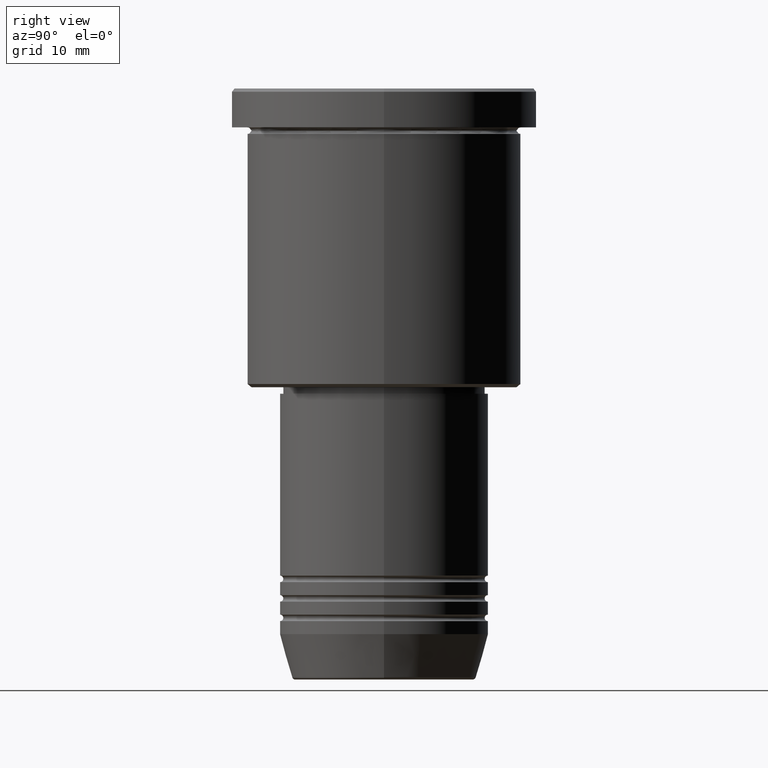
[diagram: clean part render]
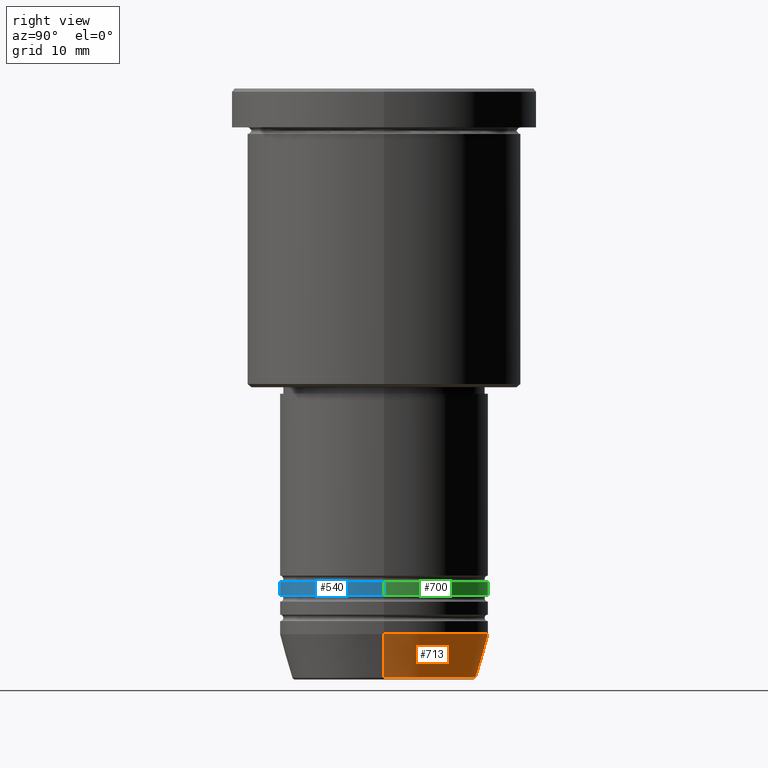
[diagram: same view with three faces highlighted in distinct colors, each labeled with its STEP entity id]
A machine part, right view with three faces highlighted in distinct colors.
Their STEP definitions:

[orange] entity #713 — the highlighted conical surface has half-angle 15 deg.
#4 = DIRECTION ( 'NONE',  ( -0.000000000000000000, -0.000000000000000000, 1.000000000000000000 ) ) ;
#18 = VECTOR ( 'NONE', #1032, 1000.000000000000000 ) ;
#33 = EDGE_CURVE ( 'NONE', #224, #97, #1095, .T. ) ;
#36 = CARTESIAN_POINT ( 'NONE',  ( -16.00000000000000000, 1.959434878635765131E-15, -83.99999999999998579 ) ) ;
#97 = VERTEX_POINT ( 'NONE', #255 ) ;
#105 = CARTESIAN_POINT ( 'NONE',  ( -16.00000000000000000, 1.959434878635765131E-15, -83.99999999999998579 ) ) ;
#152 = DIRECTION ( 'NONE',  ( 0.2588190451025213501, 0.000000000000000000, 0.9659258262890680902 ) ) ;
#198 = CIRCLE ( 'NONE', #1028, 14.22365507213718949 ) ;
#210 = DIRECTION ( 'NONE',  ( 1.000000000000000000, 0.000000000000000000, 0.000000000000000000 ) ) ;
#224 = VERTEX_POINT ( 'NONE', #1004 ) ;
#230 = EDGE_CURVE ( 'NONE', #224, #915, #198, .T. ) ;
#243 = ORIENTED_EDGE ( 'NONE', *, *, #33, .F. ) ;
#255 = CARTESIAN_POINT ( 'NONE',  ( 16.00000000000000000, 0.000000000000000000, -83.99999999999998579 ) ) ;
#318 = CARTESIAN_POINT ( 'NONE',  ( -14.22365507213718949, 1.850665122131323337E-15, -90.62940952255125637 ) ) ;
#336 = DIRECTION ( 'NONE',  ( 1.000000000000000000, 0.000000000000000000, 0.000000000000000000 ) ) ;
#338 = CARTESIAN_POINT ( 'NONE',  ( 0.000000000000000000, 0.000000000000000000, -90.62940952255125637 ) ) ;
#365 = ORIENTED_EDGE ( 'NONE', *, *, #707, .F. ) ;
#463 = DIRECTION ( 'NONE',  ( -0.000000000000000000, -0.000000000000000000, 1.000000000000000000 ) ) ;
#487 = CONICAL_SURFACE ( 'NONE', #1174, 16.00000000000000000, 0.2617993877991500740 ) ;
#564 = EDGE_LOOP ( 'NONE', ( #907, #726, #365, #243 ) ) ;
#617 = CARTESIAN_POINT ( 'NONE',  ( 16.00000000000000000, 0.000000000000000000, -83.99999999999998579 ) ) ;
#674 = LINE ( 'NONE', #36, #18 ) ;
#707 = EDGE_CURVE ( 'NONE', #97, #806, #1063, .T. ) ;
#710 = DIRECTION ( 'NONE',  ( 1.000000000000000000, 0.000000000000000000, 0.000000000000000000 ) ) ;
#713 = ADVANCED_FACE ( 'NONE', ( #1076 ), #487, .T. ) ;
#726 = ORIENTED_EDGE ( 'NONE', *, *, #892, .T. ) ;
#796 = CARTESIAN_POINT ( 'NONE',  ( 0.000000000000000000, 0.000000000000000000, -83.99999999999998579 ) ) ;
#806 = VERTEX_POINT ( 'NONE', #105 ) ;
#810 = VECTOR ( 'NONE', #152, 1000.000000000000000 ) ;
#892 = EDGE_CURVE ( 'NONE', #915, #806, #674, .T. ) ;
#907 = ORIENTED_EDGE ( 'NONE', *, *, #230, .T. ) ;
#915 = VERTEX_POINT ( 'NONE', #318 ) ;
#1004 = CARTESIAN_POINT ( 'NONE',  ( 14.22365507213718949, 0.000000000000000000, -90.62940952255125637 ) ) ;
#1028 = AXIS2_PLACEMENT_3D ( 'NONE', #338, #463, #210 ) ;
#1031 = AXIS2_PLACEMENT_3D ( 'NONE', #796, #4, #710 ) ;
#1032 = DIRECTION ( 'NONE',  ( -0.2588190451025213501, 3.169619151431772337E-17, 0.9659258262890680902 ) ) ;
#1063 = CIRCLE ( 'NONE', #1031, 16.00000000000000000 ) ;
#1070 = CARTESIAN_POINT ( 'NONE',  ( 0.000000000000000000, 0.000000000000000000, -83.99999999999998579 ) ) ;
#1076 = FACE_OUTER_BOUND ( 'NONE', #564, .T. ) ;
#1084 = DIRECTION ( 'NONE',  ( -0.000000000000000000, -0.000000000000000000, 1.000000000000000000 ) ) ;
#1095 = LINE ( 'NONE', #617, #810 ) ;
#1174 = AXIS2_PLACEMENT_3D ( 'NONE', #1070, #1084, #336 ) ;

[blue] entity #540 — the highlighted cylindrical surface (partial cylindrical patch) has radius 16 mm, axis along (-0, -0, 1).
#30 = CARTESIAN_POINT ( 'NONE',  ( -16.00000000000000000, 1.959434878635765131E-15, -75.99999999999997158 ) ) ;
#77 = ORIENTED_EDGE ( 'NONE', *, *, #98, .F. ) ;
#98 = EDGE_CURVE ( 'NONE', #833, #461, #835, .T. ) ;
#115 = VERTEX_POINT ( 'NONE', #1071 ) ;
#141 = CARTESIAN_POINT ( 'NONE',  ( 16.00000000000000000, 0.000000000000000000, 0.000000000000000000 ) ) ;
#145 = DIRECTION ( 'NONE',  ( -0.000000000000000000, -0.000000000000000000, 1.000000000000000000 ) ) ;
#227 = CYLINDRICAL_SURFACE ( 'NONE', #393, 16.00000000000000000 ) ;
#231 = FACE_OUTER_BOUND ( 'NONE', #690, .T. ) ;
#233 = DIRECTION ( 'NONE',  ( -0.000000000000000000, -0.000000000000000000, 1.000000000000000000 ) ) ;
#245 = DIRECTION ( 'NONE',  ( -0.000000000000000000, -0.000000000000000000, 1.000000000000000000 ) ) ;
#257 = AXIS2_PLACEMENT_3D ( 'NONE', #821, #245, #884 ) ;
#282 = CARTESIAN_POINT ( 'NONE',  ( 16.00000000000000000, 0.000000000000000000, -75.99999999999997158 ) ) ;
#345 = AXIS2_PLACEMENT_3D ( 'NONE', #465, #600, #615 ) ;
#376 = ORIENTED_EDGE ( 'NONE', *, *, #577, .F. ) ;
#393 = AXIS2_PLACEMENT_3D ( 'NONE', #867, #145, #870 ) ;
#461 = VERTEX_POINT ( 'NONE', #282 ) ;
#465 = CARTESIAN_POINT ( 'NONE',  ( 0.000000000000000000, 0.000000000000000000, -75.99999999999997158 ) ) ;
#540 = ADVANCED_FACE ( 'NONE', ( #231 ), #227, .T. ) ;
#577 = EDGE_CURVE ( 'NONE', #115, #833, #699, .T. ) ;
#600 = DIRECTION ( 'NONE',  ( -0.000000000000000000, -0.000000000000000000, 1.000000000000000000 ) ) ;
#603 = LINE ( 'NONE', #141, #862 ) ;
#615 = DIRECTION ( 'NONE',  ( 1.000000000000000000, 0.000000000000000000, 0.000000000000000000 ) ) ;
#627 = ORIENTED_EDGE ( 'NONE', *, *, #1097, .T. ) ;
#637 = CARTESIAN_POINT ( 'NONE',  ( 16.00000000000000000, 0.000000000000000000, -77.99999999999997158 ) ) ;
#680 = CARTESIAN_POINT ( 'NONE',  ( -16.00000000000000000, 1.959434878635765131E-15, 0.000000000000000000 ) ) ;
#690 = EDGE_LOOP ( 'NONE', ( #376, #627, #912, #77 ) ) ;
#699 = LINE ( 'NONE', #680, #735 ) ;
#735 = VECTOR ( 'NONE', #882, 1000.000000000000000 ) ;
#821 = CARTESIAN_POINT ( 'NONE',  ( 0.000000000000000000, 0.000000000000000000, -77.99999999999997158 ) ) ;
#833 = VERTEX_POINT ( 'NONE', #30 ) ;
#835 = CIRCLE ( 'NONE', #345, 16.00000000000000000 ) ;
#862 = VECTOR ( 'NONE', #233, 1000.000000000000000 ) ;
#867 = CARTESIAN_POINT ( 'NONE',  ( 0.000000000000000000, 0.000000000000000000, 0.000000000000000000 ) ) ;
#870 = DIRECTION ( 'NONE',  ( 1.000000000000000000, 0.000000000000000000, 0.000000000000000000 ) ) ;
#882 = DIRECTION ( 'NONE',  ( -0.000000000000000000, -0.000000000000000000, 1.000000000000000000 ) ) ;
#884 = DIRECTION ( 'NONE',  ( 1.000000000000000000, 0.000000000000000000, 0.000000000000000000 ) ) ;
#912 = ORIENTED_EDGE ( 'NONE', *, *, #941, .T. ) ;
#941 = EDGE_CURVE ( 'NONE', #1094, #461, #603, .T. ) ;
#1071 = CARTESIAN_POINT ( 'NONE',  ( -16.00000000000000000, 1.959434878635765131E-15, -77.99999999999997158 ) ) ;
#1094 = VERTEX_POINT ( 'NONE', #637 ) ;
#1097 = EDGE_CURVE ( 'NONE', #115, #1094, #1104, .T. ) ;
#1104 = CIRCLE ( 'NONE', #257, 16.00000000000000000 ) ;

[green] entity #700 — the highlighted cylindrical surface (partial cylindrical patch) has radius 16 mm, axis along (-0, -0, 1).
#30 = CARTESIAN_POINT ( 'NONE',  ( -16.00000000000000000, 1.959434878635765131E-15, -75.99999999999997158 ) ) ;
#54 = DIRECTION ( 'NONE',  ( 1.000000000000000000, 0.000000000000000000, 0.000000000000000000 ) ) ;
#87 = DIRECTION ( 'NONE',  ( 1.000000000000000000, 0.000000000000000000, 0.000000000000000000 ) ) ;
#115 = VERTEX_POINT ( 'NONE', #1071 ) ;
#135 = DIRECTION ( 'NONE',  ( -0.000000000000000000, -0.000000000000000000, 1.000000000000000000 ) ) ;
#141 = CARTESIAN_POINT ( 'NONE',  ( 16.00000000000000000, 0.000000000000000000, 0.000000000000000000 ) ) ;
#151 = EDGE_CURVE ( 'NONE', #1094, #115, #274, .T. ) ;
#169 = DIRECTION ( 'NONE',  ( -0.000000000000000000, -0.000000000000000000, 1.000000000000000000 ) ) ;
#233 = DIRECTION ( 'NONE',  ( -0.000000000000000000, -0.000000000000000000, 1.000000000000000000 ) ) ;
#274 = CIRCLE ( 'NONE', #887, 16.00000000000000000 ) ;
#282 = CARTESIAN_POINT ( 'NONE',  ( 16.00000000000000000, 0.000000000000000000, -75.99999999999997158 ) ) ;
#283 = EDGE_CURVE ( 'NONE', #461, #833, #569, .T. ) ;
#341 = FACE_OUTER_BOUND ( 'NONE', #987, .T. ) ;
#348 = DIRECTION ( 'NONE',  ( 1.000000000000000000, 0.000000000000000000, 0.000000000000000000 ) ) ;
#425 = ORIENTED_EDGE ( 'NONE', *, *, #151, .T. ) ;
#440 = ORIENTED_EDGE ( 'NONE', *, *, #283, .F. ) ;
#461 = VERTEX_POINT ( 'NONE', #282 ) ;
#547 = CYLINDRICAL_SURFACE ( 'NONE', #762, 16.00000000000000000 ) ;
#569 = CIRCLE ( 'NONE', #608, 16.00000000000000000 ) ;
#577 = EDGE_CURVE ( 'NONE', #115, #833, #699, .T. ) ;
#603 = LINE ( 'NONE', #141, #862 ) ;
#608 = AXIS2_PLACEMENT_3D ( 'NONE', #702, #135, #54 ) ;
#634 = CARTESIAN_POINT ( 'NONE',  ( 0.000000000000000000, 0.000000000000000000, -77.99999999999997158 ) ) ;
#637 = CARTESIAN_POINT ( 'NONE',  ( 16.00000000000000000, 0.000000000000000000, -77.99999999999997158 ) ) ;
#680 = CARTESIAN_POINT ( 'NONE',  ( -16.00000000000000000, 1.959434878635765131E-15, 0.000000000000000000 ) ) ;
#699 = LINE ( 'NONE', #680, #735 ) ;
#700 = ADVANCED_FACE ( 'NONE', ( #341 ), #547, .T. ) ;
#702 = CARTESIAN_POINT ( 'NONE',  ( 0.000000000000000000, 0.000000000000000000, -75.99999999999997158 ) ) ;
#703 = ORIENTED_EDGE ( 'NONE', *, *, #577, .T. ) ;
#724 = ORIENTED_EDGE ( 'NONE', *, *, #941, .F. ) ;
#727 = CARTESIAN_POINT ( 'NONE',  ( 0.000000000000000000, 0.000000000000000000, 0.000000000000000000 ) ) ;
#735 = VECTOR ( 'NONE', #882, 1000.000000000000000 ) ;
#762 = AXIS2_PLACEMENT_3D ( 'NONE', #727, #816, #348 ) ;
#816 = DIRECTION ( 'NONE',  ( -0.000000000000000000, -0.000000000000000000, 1.000000000000000000 ) ) ;
#833 = VERTEX_POINT ( 'NONE', #30 ) ;
#862 = VECTOR ( 'NONE', #233, 1000.000000000000000 ) ;
#882 = DIRECTION ( 'NONE',  ( -0.000000000000000000, -0.000000000000000000, 1.000000000000000000 ) ) ;
#887 = AXIS2_PLACEMENT_3D ( 'NONE', #634, #169, #87 ) ;
#941 = EDGE_CURVE ( 'NONE', #1094, #461, #603, .T. ) ;
#987 = EDGE_LOOP ( 'NONE', ( #425, #703, #440, #724 ) ) ;
#1071 = CARTESIAN_POINT ( 'NONE',  ( -16.00000000000000000, 1.959434878635765131E-15, -77.99999999999997158 ) ) ;
#1094 = VERTEX_POINT ( 'NONE', #637 ) ;